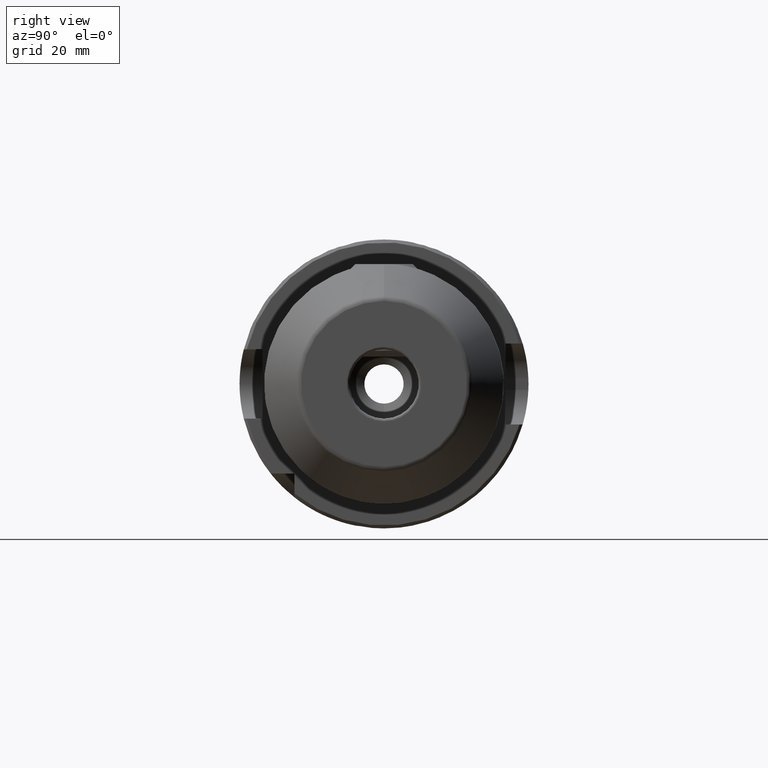
[diagram: clean part render]
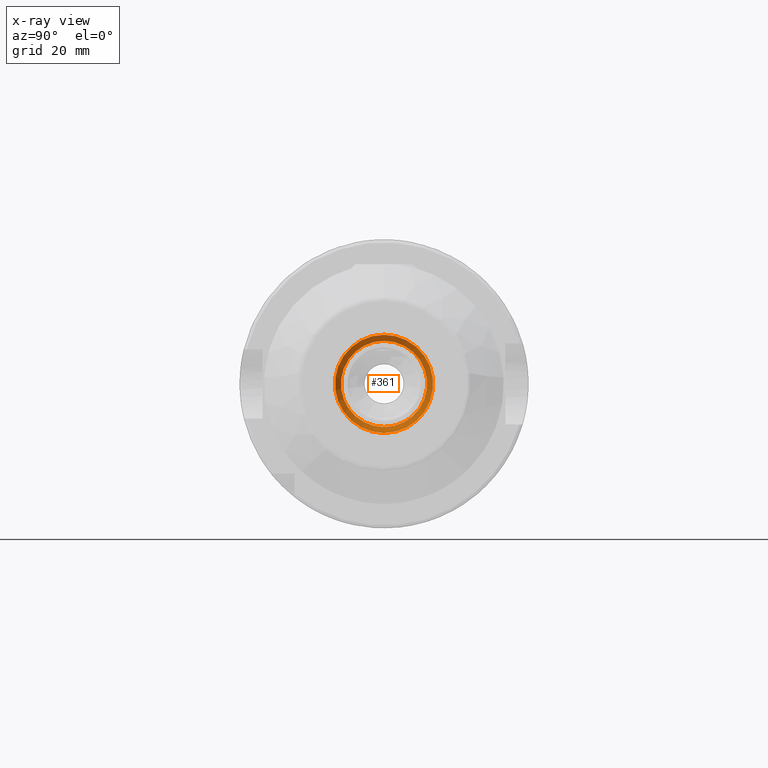
[diagram: x-ray — body ghosted, one internal face saturated and labeled with its STEP entity id]
A machine part, right view, then the same camera in x-ray: the body is ghosted and one INTERNAL B-rep face — a face not visible from any outside direction — is saturated and labeled: STEP entity #361.
In plain terms, the highlighted conical surface has half-angle 45 deg.
Its self-contained STEP definition (entity closure, byte-faithful):
#361 = ADVANCED_FACE( '', ( #812, #813 ), #814, .F. );
#812 = FACE_BOUND( '', #1339, .T. );
#813 = FACE_OUTER_BOUND( '', #1340, .T. );
#814 = CONICAL_SURFACE( '', #1341, 707.106781186548, 0.785398163397449 );
#1339 = EDGE_LOOP( '', ( #2314 ) );
#1340 = EDGE_LOOP( '', ( #2315 ) );
#1341 = AXIS2_PLACEMENT_3D( '', #2316, #2317, #2318 );
#2314 = ORIENTED_EDGE( '', *, *, #3195, .T. );
#2315 = ORIENTED_EDGE( '', *, *, #3158, .F. );
#2316 = CARTESIAN_POINT( '', ( 716.606781186547, 0.000000000000000, -1.04094977927525E-015 ) );
#2317 = DIRECTION( '', ( 1.00000000000000, -0.000000000000000, 0.000000000000000 ) );
#2318 = DIRECTION( '', ( 0.000000000000000, 0.000000000000000, -1.00000000000000 ) );
#3158 = EDGE_CURVE( '', #3842, #3842, #3843, .T. );
#3195 = EDGE_CURVE( '', #3895, #3895, #3896, .F. );
#3842 = VERTEX_POINT( '', #5676 );
#3843 = CIRCLE( '', #5677, 8.50000000000000 );
#3895 = VERTEX_POINT( '', #5831 );
#3896 = CIRCLE( '', #5832, 7.45850000000000 );
#5676 = CARTESIAN_POINT( '', ( 18.0000000000000, 0.000000000000000, 8.50000000000000 ) );
#5677 = AXIS2_PLACEMENT_3D( '', #6458, #6459, #6460 );
#5831 = CARTESIAN_POINT( '', ( 16.9585000000000, 0.000000000000000, -7.45850000000000 ) );
#5832 = AXIS2_PLACEMENT_3D( '', #6489, #6490, #6491 );
#6458 = CARTESIAN_POINT( '', ( 18.0000000000000, 0.000000000000000, -1.04094977927525E-015 ) );
#6459 = DIRECTION( '', ( -1.00000000000000, 0.000000000000000, 0.000000000000000 ) );
#6460 = DIRECTION( '', ( 0.000000000000000, 0.000000000000000, 1.00000000000000 ) );
#6489 = CARTESIAN_POINT( '', ( 16.9585000000000, 0.000000000000000, -1.04094977927525E-015 ) );
#6490 = DIRECTION( '', ( 1.00000000000000, 0.000000000000000, 0.000000000000000 ) );
#6491 = DIRECTION( '', ( 0.000000000000000, 0.000000000000000, -1.00000000000000 ) );